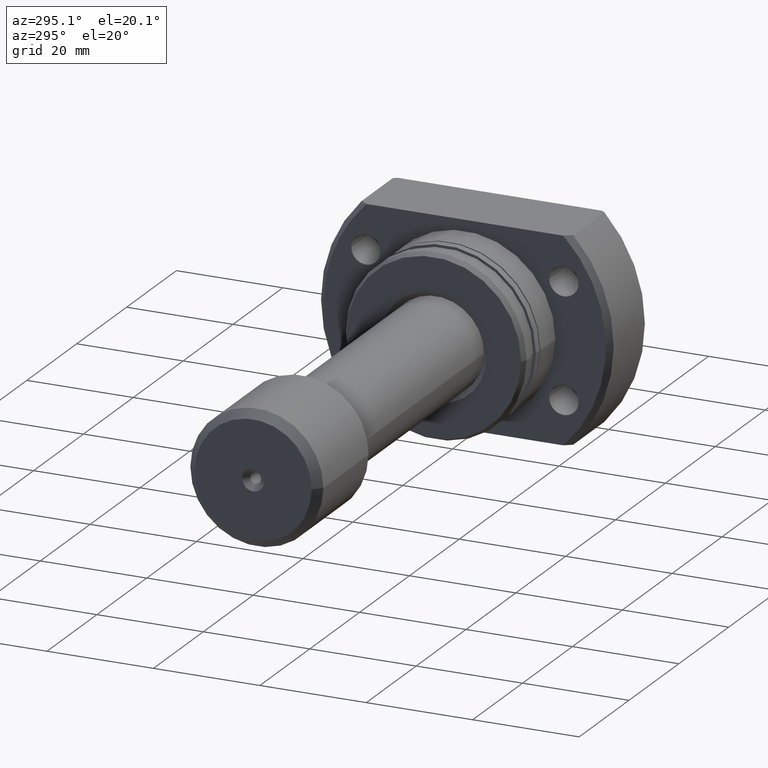
[diagram: clean part render]
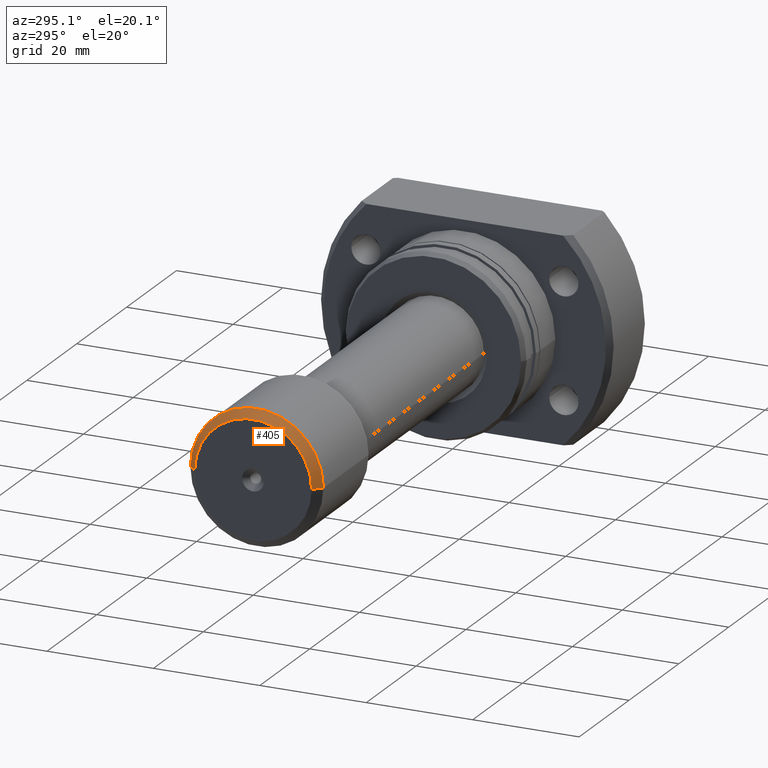
[diagram: same view with one face highlighted and labeled with its STEP entity id]
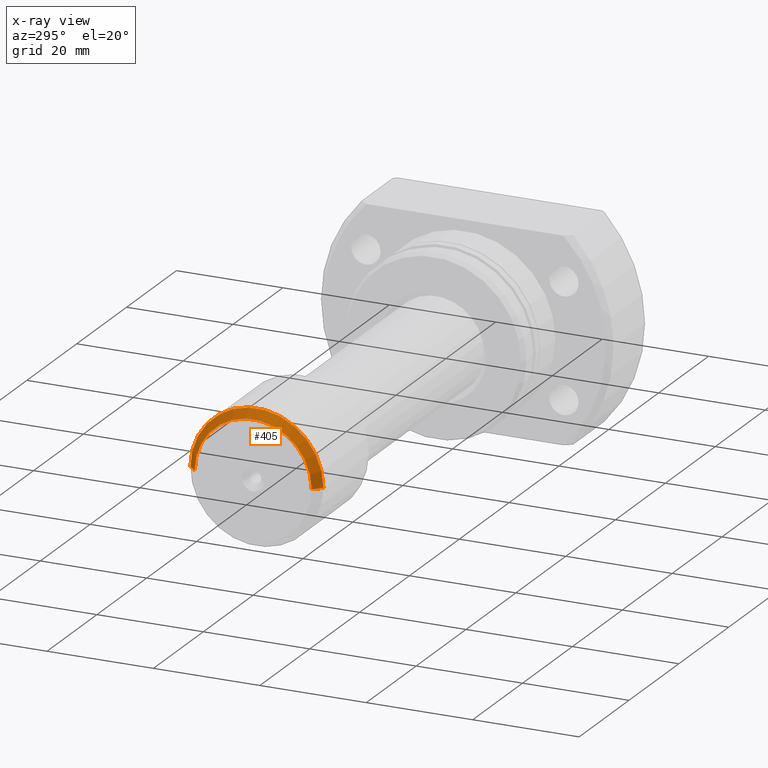
[diagram: x-ray of the same camera — body ghosted, the highlighted face saturated]
A machine part, auxiliary view. The second image highlights one B-rep face of the part: STEP entity #405.
The next image is the same camera in x-ray: the body ghosted, the highlighted face saturated — about 0% of this face is hidden behind the body in this view.
In plain terms, the highlighted conical surface has half-angle 45 deg.
Its self-contained STEP definition (entity closure, byte-faithful):
#51 = DIRECTION ( 'NONE',  ( 1.000000000000000000, 1.069542322069065801E-17, 0.000000000000000000 ) ) ;
#78 = DIRECTION ( 'NONE',  ( 0.7071067811865477948, -0.7071067811865473507, 8.659560562354931626E-17 ) ) ;
#115 = ORIENTED_EDGE ( 'NONE', *, *, #1252, .F. ) ;
#230 = AXIS2_PLACEMENT_3D ( 'NONE', #3087, #3098, #577 ) ;
#235 = DIRECTION ( 'NONE',  ( 0.7071067811865477948, 0.7071067811865473507, 0.000000000000000000 ) ) ;
#281 = CARTESIAN_POINT ( 'NONE',  ( 1.500000000000001332, 12.50000000000000000, 0.000000000000000000 ) ) ;
#405 = ADVANCED_FACE ( 'NONE', ( #741 ), #1239, .T. ) ;
#409 = DIRECTION ( 'NONE',  ( 1.069542322069065647E-17, -1.000000000000000000, 0.000000000000000000 ) ) ;
#543 = CIRCLE ( 'NONE', #2358, 11.00000000000000178 ) ;
#562 = CARTESIAN_POINT ( 'NONE',  ( 1.229461823634491368E-15, 1.314961453745302249E-32, 0.000000000000000000 ) ) ;
#577 = DIRECTION ( 'NONE',  ( 1.734723475976807094E-17, -1.000000000000000000, 0.000000000000000000 ) ) ;
#741 = FACE_OUTER_BOUND ( 'NONE', #3159, .T. ) ;
#830 = ORIENTED_EDGE ( 'NONE', *, *, #1991, .T. ) ;
#897 = VERTEX_POINT ( 'NONE', #1464 ) ;
#1239 = CONICAL_SURFACE ( 'NONE', #2482, 11.00000000000000178, 0.7853981633974480570 ) ;
#1252 = EDGE_CURVE ( 'NONE', #1819, #1930, #2452, .T. ) ;
#1290 = DIRECTION ( 'NONE',  ( -1.069542322069065647E-17, 1.000000000000000000, 0.000000000000000000 ) ) ;
#1307 = CARTESIAN_POINT ( 'NONE',  ( 1.111812168206894135E-15, 11.00000000000000178, 0.000000000000000000 ) ) ;
#1422 = ORIENTED_EDGE ( 'NONE', *, *, #2505, .F. ) ;
#1464 = CARTESIAN_POINT ( 'NONE',  ( 1.347111479062088602E-15, -11.00000000000000178, 1.438959988998140160E-15 ) ) ;
#1478 = CIRCLE ( 'NONE', #230, 12.50000000000000000 ) ;
#1561 = DIRECTION ( 'NONE',  ( -1.000000000000000000, -1.069542322069065801E-17, -0.000000000000000000 ) ) ;
#1707 = CARTESIAN_POINT ( 'NONE',  ( 1.111812168206894135E-15, 11.00000000000000178, 0.000000000000000000 ) ) ;
#1819 = VERTEX_POINT ( 'NONE', #1307 ) ;
#1830 = VERTEX_POINT ( 'NONE', #3030 ) ;
#1843 = LINE ( 'NONE', #2396, #3097 ) ;
#1930 = VERTEX_POINT ( 'NONE', #281 ) ;
#1991 = EDGE_CURVE ( 'NONE', #1830, #1930, #1478, .T. ) ;
#2071 = VECTOR ( 'NONE', #235, 999.9999999999998863 ) ;
#2136 = ORIENTED_EDGE ( 'NONE', *, *, #2391, .T. ) ;
#2358 = AXIS2_PLACEMENT_3D ( 'NONE', #562, #1561, #409 ) ;
#2391 = EDGE_CURVE ( 'NONE', #897, #1830, #1843, .T. ) ;
#2396 = CARTESIAN_POINT ( 'NONE',  ( 1.347111479062088602E-15, -11.00000000000000178, 1.347111479062088602E-15 ) ) ;
#2452 = LINE ( 'NONE', #1707, #2071 ) ;
#2482 = AXIS2_PLACEMENT_3D ( 'NONE', #3036, #51, #1290 ) ;
#2505 = EDGE_CURVE ( 'NONE', #897, #1819, #543, .T. ) ;
#3030 = CARTESIAN_POINT ( 'NONE',  ( 1.500000000000001776, -12.50000000000000000, 1.530808498934191521E-15 ) ) ;
#3036 = CARTESIAN_POINT ( 'NONE',  ( 1.229461823634491368E-15, 1.314961453745302249E-32, 0.000000000000000000 ) ) ;
#3087 = CARTESIAN_POINT ( 'NONE',  ( 1.500000000000001554, 1.604313483103600319E-17, 0.000000000000000000 ) ) ;
#3097 = VECTOR ( 'NONE', #78, 999.9999999999998863 ) ;
#3098 = DIRECTION ( 'NONE',  ( -1.000000000000000000, -1.069542322069065801E-17, -0.000000000000000000 ) ) ;
#3159 = EDGE_LOOP ( 'NONE', ( #1422, #2136, #830, #115 ) ) ;